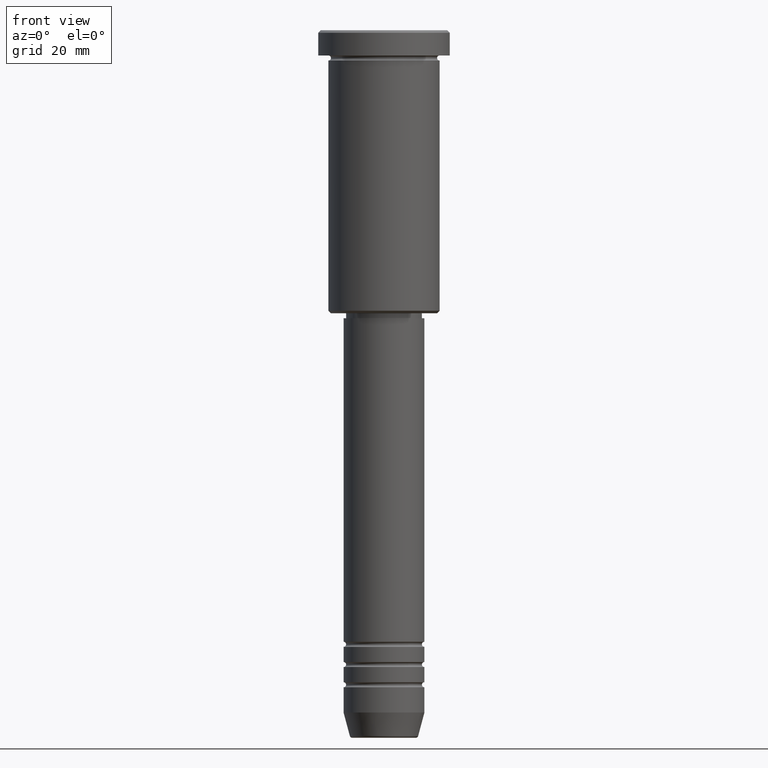
[diagram: clean part render]
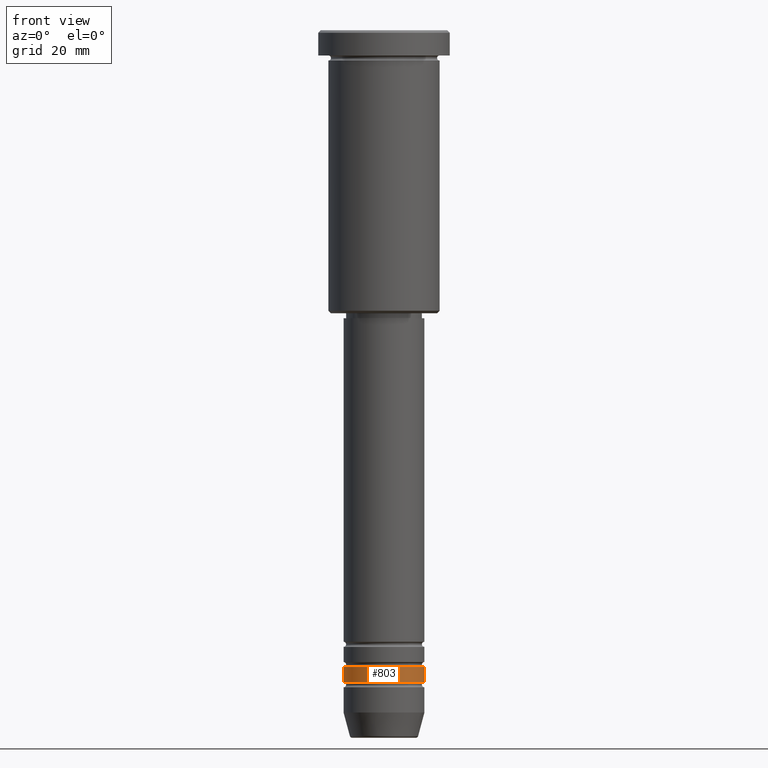
[diagram: same view with one face highlighted and labeled with its STEP entity id]
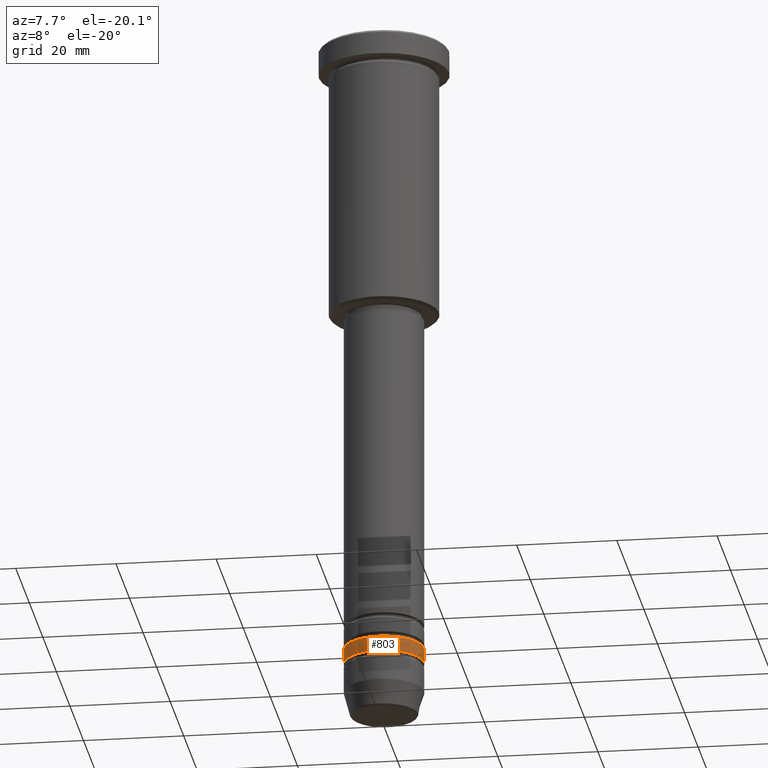
[diagram: same view with one face highlighted and labeled with its STEP entity id]
A machine part, front view. The second image highlights one B-rep face of the part: STEP entity #803.
A second angle (auxiliary view) of the same face is appended — the face is thin or edge-on in the first view.
In plain terms, the highlighted cylindrical surface (partial cylindrical patch) has radius 8 mm, axis along (-0, -0, 1).
Its self-contained STEP definition (entity closure, byte-faithful):
#41 = VERTEX_POINT ( 'NONE', #548 ) ;
#72 = LINE ( 'NONE', #648, #135 ) ;
#101 = ORIENTED_EDGE ( 'NONE', *, *, #1072, .T. ) ;
#135 = VECTOR ( 'NONE', #819, 1000.000000000000000 ) ;
#169 = VERTEX_POINT ( 'NONE', #881 ) ;
#215 = CARTESIAN_POINT ( 'NONE',  ( 0.000000000000000000, 0.000000000000000000, -129.0000000000000000 ) ) ;
#234 = ORIENTED_EDGE ( 'NONE', *, *, #943, .F. ) ;
#243 = CYLINDRICAL_SURFACE ( 'NONE', #1081, 8.000000000000000000 ) ;
#308 = VERTEX_POINT ( 'NONE', #531 ) ;
#318 = DIRECTION ( 'NONE',  ( -0.000000000000000000, -0.000000000000000000, 1.000000000000000000 ) ) ;
#393 = CARTESIAN_POINT ( 'NONE',  ( 0.000000000000000000, 0.000000000000000000, -126.0000000000000000 ) ) ;
#406 = EDGE_CURVE ( 'NONE', #169, #41, #1020, .T. ) ;
#455 = CIRCLE ( 'NONE', #494, 8.000000000000000000 ) ;
#494 = AXIS2_PLACEMENT_3D ( 'NONE', #215, #318, #690 ) ;
#508 = EDGE_CURVE ( 'NONE', #169, #1112, #455, .T. ) ;
#531 = CARTESIAN_POINT ( 'NONE',  ( 8.000000000000000000, 0.000000000000000000, -126.0000000000000000 ) ) ;
#537 = AXIS2_PLACEMENT_3D ( 'NONE', #393, #1032, #1149 ) ;
#548 = CARTESIAN_POINT ( 'NONE',  ( -8.000000000000000000, 9.797174393178825657E-16, -126.0000000000000000 ) ) ;
#595 = EDGE_LOOP ( 'NONE', ( #908, #931, #101, #234 ) ) ;
#611 = CARTESIAN_POINT ( 'NONE',  ( 0.000000000000000000, 0.000000000000000000, 0.000000000000000000 ) ) ;
#635 = CARTESIAN_POINT ( 'NONE',  ( 8.000000000000000000, 0.000000000000000000, -129.0000000000000000 ) ) ;
#648 = CARTESIAN_POINT ( 'NONE',  ( 8.000000000000000000, 0.000000000000000000, 0.000000000000000000 ) ) ;
#660 = DIRECTION ( 'NONE',  ( -0.000000000000000000, -0.000000000000000000, 1.000000000000000000 ) ) ;
#686 = DIRECTION ( 'NONE',  ( -0.000000000000000000, -0.000000000000000000, 1.000000000000000000 ) ) ;
#690 = DIRECTION ( 'NONE',  ( 1.000000000000000000, 0.000000000000000000, 0.000000000000000000 ) ) ;
#792 = CIRCLE ( 'NONE', #537, 8.000000000000000000 ) ;
#803 = ADVANCED_FACE ( 'NONE', ( #1051 ), #243, .T. ) ;
#819 = DIRECTION ( 'NONE',  ( -0.000000000000000000, -0.000000000000000000, 1.000000000000000000 ) ) ;
#846 = DIRECTION ( 'NONE',  ( 1.000000000000000000, 0.000000000000000000, 0.000000000000000000 ) ) ;
#881 = CARTESIAN_POINT ( 'NONE',  ( -8.000000000000000000, 9.797174393178825657E-16, -129.0000000000000000 ) ) ;
#908 = ORIENTED_EDGE ( 'NONE', *, *, #406, .F. ) ;
#931 = ORIENTED_EDGE ( 'NONE', *, *, #508, .T. ) ;
#943 = EDGE_CURVE ( 'NONE', #41, #308, #792, .T. ) ;
#994 = VECTOR ( 'NONE', #660, 1000.000000000000000 ) ;
#1009 = CARTESIAN_POINT ( 'NONE',  ( -8.000000000000000000, 9.797174393178825657E-16, 0.000000000000000000 ) ) ;
#1020 = LINE ( 'NONE', #1009, #994 ) ;
#1032 = DIRECTION ( 'NONE',  ( -0.000000000000000000, -0.000000000000000000, 1.000000000000000000 ) ) ;
#1051 = FACE_OUTER_BOUND ( 'NONE', #595, .T. ) ;
#1072 = EDGE_CURVE ( 'NONE', #1112, #308, #72, .T. ) ;
#1081 = AXIS2_PLACEMENT_3D ( 'NONE', #611, #686, #846 ) ;
#1112 = VERTEX_POINT ( 'NONE', #635 ) ;
#1149 = DIRECTION ( 'NONE',  ( 1.000000000000000000, 0.000000000000000000, 0.000000000000000000 ) ) ;